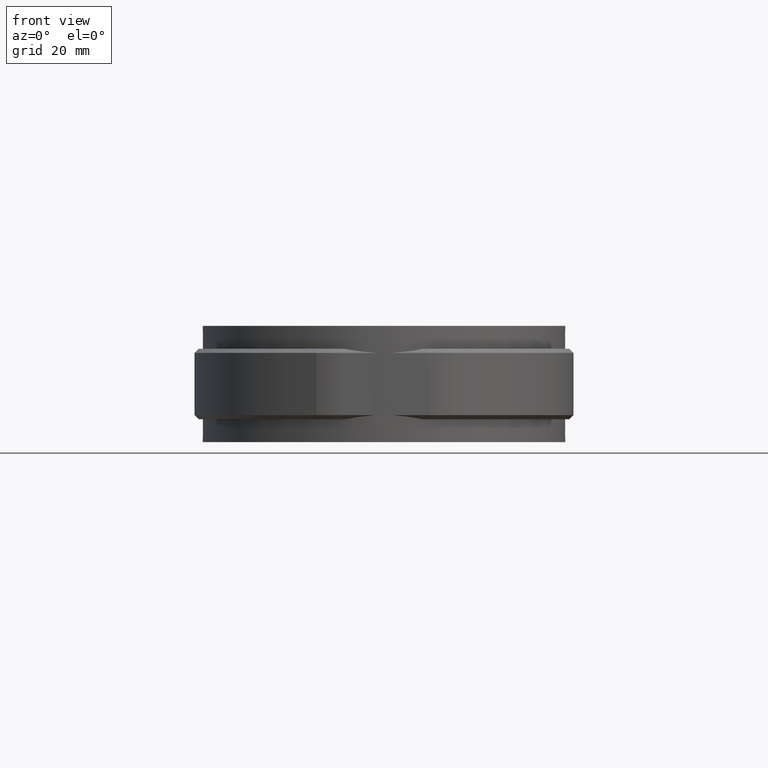
[diagram: clean part render]
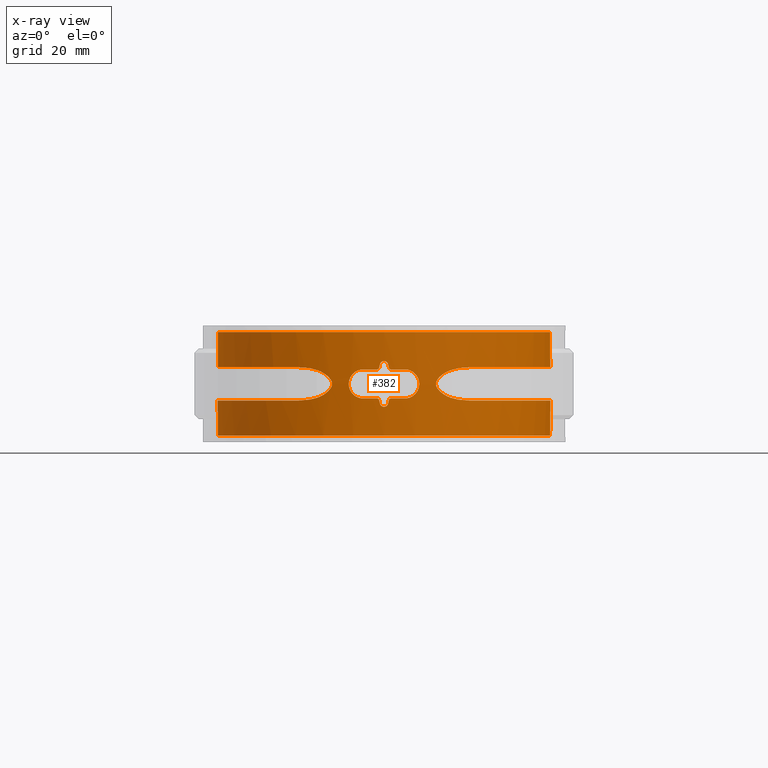
[diagram: x-ray — body ghosted, one internal face saturated and labeled with its STEP entity id]
A machine part, front view, then the same camera in x-ray: the body is ghosted and one INTERNAL B-rep face — a face not visible from any outside direction — is saturated and labeled: STEP entity #382.
In plain terms, the highlighted cylindrical surface (partial cylindrical patch) has radius 40.15 mm, axis along (0, 0, 1).
Its self-contained STEP definition (entity closure, byte-faithful):
#382 = ADVANCED_FACE( '', ( #734, #735 ), #736, .F. );
#734 = FACE_OUTER_BOUND( '', #1621, .T. );
#735 = FACE_BOUND( '', #1622, .T. );
#736 = CYLINDRICAL_SURFACE( '', #1623, 40.1500000000000 );
#1621 = EDGE_LOOP( '', ( #3108, #3109, #3110, #3111, #3112, #3113, #3114, #3115, #3116, #3117, #3118, #3119, #3120, #3121, #3122, #3123 ) );
#1622 = EDGE_LOOP( '', ( #3124, #3125, #3126, #3127, #3128, #3129, #3130, #3131, #3132, #3133, #3134, #3135, #3136, #3137, #3138, #3139 ) );
#1623 = AXIS2_PLACEMENT_3D( '', #3140, #3141, #3142 );
#3108 = ORIENTED_EDGE( '', *, *, #6207, .F. );
#3109 = ORIENTED_EDGE( '', *, *, #6197, .F. );
#3110 = ORIENTED_EDGE( '', *, *, #6216, .T. );
#3111 = ORIENTED_EDGE( '', *, *, #6203, .T. );
#3112 = ORIENTED_EDGE( '', *, *, #6217, .T. );
#3113 = ORIENTED_EDGE( '', *, *, #6218, .T. );
#3114 = ORIENTED_EDGE( '', *, *, #6219, .T. );
#3115 = ORIENTED_EDGE( '', *, *, #6220, .T. );
#3116 = ORIENTED_EDGE( '', *, *, #6221, .T. );
#3117 = ORIENTED_EDGE( '', *, *, #6201, .T. );
#3118 = ORIENTED_EDGE( '', *, *, #6141, .F. );
#3119 = ORIENTED_EDGE( '', *, *, #6199, .F. );
#3120 = ORIENTED_EDGE( '', *, *, #6208, .F. );
#3121 = ORIENTED_EDGE( '', *, *, #6186, .F. );
#3122 = ORIENTED_EDGE( '', *, *, #6222, .F. );
#3123 = ORIENTED_EDGE( '', *, *, #6184, .F. );
#3124 = ORIENTED_EDGE( '', *, *, #6223, .F. );
#3125 = ORIENTED_EDGE( '', *, *, #6224, .F. );
#3126 = ORIENTED_EDGE( '', *, *, #6213, .F. );
#3127 = ORIENTED_EDGE( '', *, *, #6225, .F. );
#3128 = ORIENTED_EDGE( '', *, *, #6226, .F. );
#3129 = ORIENTED_EDGE( '', *, *, #6227, .F. );
#3130 = ORIENTED_EDGE( '', *, *, #6195, .F. );
#3131 = ORIENTED_EDGE( '', *, *, #6190, .F. );
#3132 = ORIENTED_EDGE( '', *, *, #6193, .F. );
#3133 = ORIENTED_EDGE( '', *, *, #6205, .F. );
#3134 = ORIENTED_EDGE( '', *, *, #6228, .F. );
#3135 = ORIENTED_EDGE( '', *, *, #6229, .F. );
#3136 = ORIENTED_EDGE( '', *, *, #6230, .F. );
#3137 = ORIENTED_EDGE( '', *, *, #6231, .F. );
#3138 = ORIENTED_EDGE( '', *, *, #6232, .F. );
#3139 = ORIENTED_EDGE( '', *, *, #6233, .F. );
#3140 = CARTESIAN_POINT( '', ( 0.000000000000000, 0.000000000000000, -12.5000000000000 ) );
#3141 = DIRECTION( '', ( 0.000000000000000, 0.000000000000000, 1.00000000000000 ) );
#3142 = DIRECTION( '', ( -1.00000000000000, 6.16283340149655E-017, 0.000000000000000 ) );
#6141 = EDGE_CURVE( '', #7061, #7063, #7064, .T. );
#6184 = EDGE_CURVE( '', #7141, #7144, #7145, .T. );
#6186 = EDGE_CURVE( '', #7146, #7142, #7148, .T. );
#6190 = EDGE_CURVE( '', #7154, #7155, #7156, .T. );
#6193 = EDGE_CURVE( '', #7159, #7154, #7160, .T. );
#6195 = EDGE_CURVE( '', #7155, #7162, #7163, .F. );
#6197 = EDGE_CURVE( '', #7165, #7166, #7167, .T. );
#6199 = EDGE_CURVE( '', #7168, #7061, #7170, .T. );
#6201 = EDGE_CURVE( '', #7172, #7063, #7173, .T. );
#6203 = EDGE_CURVE( '', #7176, #7174, #7177, .T. );
#6205 = EDGE_CURVE( '', #7179, #7159, #7180, .T. );
#6207 = EDGE_CURVE( '', #7166, #7141, #7182, .T. );
#6208 = EDGE_CURVE( '', #7142, #7168, #7183, .T. );
#6213 = EDGE_CURVE( '', #7189, #7190, #7191, .F. );
#6216 = EDGE_CURVE( '', #7165, #7176, #7194, .T. );
#6217 = EDGE_CURVE( '', #7174, #7195, #7196, .T. );
#6218 = EDGE_CURVE( '', #7195, #7197, #7198, .T. );
#6219 = EDGE_CURVE( '', #7197, #7199, #7200, .T. );
#6220 = EDGE_CURVE( '', #7199, #7201, #7202, .T. );
#6221 = EDGE_CURVE( '', #7201, #7172, #7203, .T. );
#6222 = EDGE_CURVE( '', #7144, #7146, #7204, .T. );
#6223 = EDGE_CURVE( '', #7205, #7206, #7207, .T. );
#6224 = EDGE_CURVE( '', #7190, #7205, #7208, .T. );
#6225 = EDGE_CURVE( '', #7209, #7189, #7210, .T. );
#6226 = EDGE_CURVE( '', #7211, #7209, #7212, .T. );
#6227 = EDGE_CURVE( '', #7162, #7211, #7213, .T. );
#6228 = EDGE_CURVE( '', #7214, #7179, #7215, .F. );
#6229 = EDGE_CURVE( '', #7216, #7214, #7217, .T. );
#6230 = EDGE_CURVE( '', #7218, #7216, #7219, .T. );
#6231 = EDGE_CURVE( '', #7220, #7218, #7221, .T. );
#6232 = EDGE_CURVE( '', #7222, #7220, #7223, .F. );
#6233 = EDGE_CURVE( '', #7206, #7222, #7224, .T. );
#7061 = VERTEX_POINT( '', #8582 );
#7063 = VERTEX_POINT( '', #8584 );
#7064 = CIRCLE( '', #8585, 40.1500000000000 );
#7141 = VERTEX_POINT( '', #9078 );
#7142 = VERTEX_POINT( '', #9079 );
#7144 = VERTEX_POINT( '', #9094 );
#7145 = B_SPLINE_CURVE_WITH_KNOTS( '', 3, ( #9095, #9096, #9097, #9098, #9099, #9100, #9101, #9102, #9103, #9104 ), .UNSPECIFIED., .F., .F., ( 4, 2, 2, 2, 4 ), ( 0.000000000000000, 0.00176094530905233, 0.00352189061810465, 0.00528283592715698, 0.00704378123620930 ), .UNSPECIFIED. );
#7146 = VERTEX_POINT( '', #9105 );
#7148 = B_SPLINE_CURVE_WITH_KNOTS( '', 3, ( #9112, #9113, #9114, #9115, #9116, #9117, #9118, #9119, #9120, #9121 ), .UNSPECIFIED., .F., .F., ( 4, 2, 2, 2, 4 ), ( 8.91533216502733E-016, 0.00175126059550340, 0.00350252119100591, 0.00525378178650842, 0.00700504238201093 ), .UNSPECIFIED. );
#7154 = VERTEX_POINT( '', #9141 );
#7155 = VERTEX_POINT( '', #9142 );
#7156 = ELLIPSE( '', #9143, 182.905648859919, 40.1500000000000 );
#7159 = VERTEX_POINT( '', #9148 );
#7160 = B_SPLINE_CURVE_WITH_KNOTS( '', 3, ( #9149, #9150, #9151, #9152, #9153, #9154, #9155, #9156, #9157, #9158 ), .UNSPECIFIED., .F., .F., ( 4, 2, 2, 2, 4 ), ( 0.000000000000000, 0.000671575383707445, 0.00134315076741489, 0.00201472615112234, 0.00268630153482978 ), .UNSPECIFIED. );
#7162 = VERTEX_POINT( '', #9161 );
#7163 = B_SPLINE_CURVE_WITH_KNOTS( '', 3, ( #9162, #9163, #9164, #9165, #9166, #9167 ), .UNSPECIFIED., .F., .F., ( 4, 2, 4 ), ( 0.000671961400876244, 0.00100786567876079, 0.00134376995664534 ), .UNSPECIFIED. );
#7165 = VERTEX_POINT( '', #9170 );
#7166 = VERTEX_POINT( '', #9171 );
#7167 = LINE( '', #9172, #9173 );
#7168 = VERTEX_POINT( '', #9174 );
#7170 = LINE( '', #9209, #9210 );
#7172 = VERTEX_POINT( '', #9212 );
#7173 = LINE( '', #9213, #9214 );
#7174 = VERTEX_POINT( '', #9215 );
#7176 = VERTEX_POINT( '', #9250 );
#7177 = LINE( '', #9251, #9252 );
#7179 = VERTEX_POINT( '', #9254 );
#7180 = ELLIPSE( '', #9255, 182.905742164363, 40.1500000000000 );
#7182 = B_SPLINE_CURVE_WITH_KNOTS( '', 3, ( #9258, #9259, #9260, #9261, #9262, #9263, #9264, #9265, #9266, #9267, #9268, #9269, #9270, #9271, #9272, #9273, #9274, #9275, #9276, #9277, #9278, #9279, #9280, #9281, #9282, #9283, #9284, #9285, #9286, #9287, #9288, #9289, #9290, #9291, #9292, #9293, #9294, #9295, #9296, #9297, #9298, #9299, #9300, #9301, #9302, #9303, #9304, #9305, #9306, #9307, #9308, #9309, #9310, #9311 ), .UNSPECIFIED., .F., .F., ( 4, 2, 2, 2, 2, 2, 2, 2, 2, 2, 2, 2, 2, 2, 2, 2, 2, 2, 2, 2, 2, 2, 2, 2, 2, 2, 4 ), ( 3.46944695195361E-018, 0.00613111055441332, 0.00919666583161997, 0.0107294434702233, 0.0122622211088266, 0.0183933316632399, 0.0214588869404466, 0.0229916645790499, 0.0245244422176533, 0.0306555527720666, 0.0367866633264800, 0.0383194409650833, 0.0398522186036866, 0.0429177738808933, 0.0490488844353066, 0.0521144397125133, 0.0551799949897199, 0.0613111055441332, 0.0643766608213399, 0.0674422160985465, 0.0735733266529599, 0.0766388819301665, 0.0797044372073732, 0.0858355477617865, 0.0889011030389931, 0.0919666583161998, 0.0980977688706131 ), .UNSPECIFIED. );
#7183 = B_SPLINE_CURVE_WITH_KNOTS( '', 3, ( #9312, #9313, #9314, #9315, #9316, #9317, #9318, #9319, #9320, #9321, #9322, #9323, #9324, #9325, #9326, #9327, #9328, #9329, #9330, #9331, #9332, #9333, #9334, #9335, #9336, #9337, #9338, #9339, #9340, #9341, #9342, #9343, #9344, #9345, #9346, #9347, #9348, #9349, #9350, #9351, #9352, #9353, #9354, #9355, #9356, #9357, #9358, #9359, #9360, #9361, #9362, #9363, #9364, #9365 ), .UNSPECIFIED., .F., .F., ( 4, 2, 2, 2, 2, 2, 2, 2, 2, 2, 2, 2, 2, 2, 2, 2, 2, 2, 2, 2, 2, 2, 2, 2, 2, 2, 4 ), ( 6.93889390390723E-017, 0.00613106908006858, 0.00919660362010284, 0.0107293708901200, 0.0122621381601371, 0.0183932072402056, 0.0214587417802399, 0.0229915090502570, 0.0245242763202741, 0.0306553454003426, 0.0367864144804112, 0.0383191817504283, 0.0398519490204454, 0.0429174835604797, 0.0490485526405482, 0.0521140871805824, 0.0551796217206167, 0.0613106908006852, 0.0643762253407195, 0.0674417598807538, 0.0735728289608222, 0.0766383635008565, 0.0797038980408908, 0.0858349671209593, 0.0889005016609935, 0.0919660362010278, 0.0980971052810962 ), .UNSPECIFIED. );
#7189 = VERTEX_POINT( '', #9403 );
#7190 = VERTEX_POINT( '', #9404 );
#7191 = B_SPLINE_CURVE_WITH_KNOTS( '', 3, ( #9405, #9406, #9407, #9408, #9409, #9410 ), .UNSPECIFIED., .F., .F., ( 4, 2, 4 ), ( 0.00156390507531914, 0.00189980159082791, 0.00223569810633669 ), .UNSPECIFIED. );
#7194 = CIRCLE( '', #9415, 40.1500000000000 );
#7195 = VERTEX_POINT( '', #9416 );
#7196 = B_SPLINE_CURVE_WITH_KNOTS( '', 3, ( #9417, #9418, #9419, #9420, #9421, #9422, #9423, #9424, #9425, #9426, #9427, #9428, #9429, #9430, #9431, #9432, #9433, #9434, #9435, #9436, #9437, #9438, #9439, #9440, #9441, #9442, #9443, #9444, #9445, #9446, #9447, #9448, #9449, #9450, #9451, #9452, #9453, #9454, #9455, #9456, #9457, #9458, #9459, #9460, #9461, #9462, #9463, #9464, #9465, #9466, #9467, #9468, #9469, #9470 ), .UNSPECIFIED., .F., .F., ( 4, 2, 2, 2, 2, 2, 2, 2, 2, 2, 2, 2, 2, 2, 2, 2, 2, 2, 2, 2, 2, 2, 2, 2, 2, 2, 4 ), ( 5.20417042793042E-018, 0.00613105398915283, 0.00919658098372924, 0.0107293444810174, 0.0122621079783057, 0.0183931619674585, 0.0214586889620349, 0.0229914524593231, 0.0245242159566113, 0.0306552699457642, 0.0367863239349170, 0.0383190874322052, 0.0398518509294934, 0.0429173779240698, 0.0490484319132226, 0.0521139589077990, 0.0551794859023755, 0.0613105398915283, 0.0643760668861047, 0.0674415938806811, 0.0735726478698339, 0.0766381748644103, 0.0797037018589867, 0.0858347558481395, 0.0889002828427159, 0.0919658098372922, 0.0980968638264450 ), .UNSPECIFIED. );
#7197 = VERTEX_POINT( '', #9471 );
#7198 = B_SPLINE_CURVE_WITH_KNOTS( '', 3, ( #9472, #9473, #9474, #9475, #9476, #9477, #9478, #9479, #9480, #9481 ), .UNSPECIFIED., .F., .F., ( 4, 2, 2, 2, 4 ), ( 0.000000000000000, 0.00176148800998768, 0.00352297601997537, 0.00528446402996305, 0.00704595203995073 ), .UNSPECIFIED. );
#7199 = VERTEX_POINT( '', #9482 );
#7200 = B_SPLINE_CURVE_WITH_KNOTS( '', 3, ( #9483, #9484, #9485, #9486, #9487, #9488, #9489, #9490, #9491, #9492, #9493, #9494, #9495, #9496, #9497, #9498, #9499, #9500, #9501, #9502, #9503, #9504, #9505, #9506, #9507, #9508 ), .UNSPECIFIED., .F., .F., ( 4, 2, 2, 2, 2, 2, 2, 2, 2, 2, 2, 2, 4 ), ( 2.16840434497101E-018, 0.000836751154348467, 0.00167350230869693, 0.00209187788587116, 0.00251025346304539, 0.00292862904021962, 0.00334700461739385, 0.00376538019456808, 0.00418375577174232, 0.00460213134891655, 0.00502050692609078, 0.00585725808043924, 0.00669400923478770 ), .UNSPECIFIED. );
#7201 = VERTEX_POINT( '', #9509 );
#7202 = B_SPLINE_CURVE_WITH_KNOTS( '', 3, ( #9510, #9511, #9512, #9513, #9514, #9515, #9516, #9517, #9518, #9519 ), .UNSPECIFIED., .F., .F., ( 4, 2, 2, 2, 4 ), ( 8.91533216502733E-016, 0.00175126059550340, 0.00350252119100591, 0.00525378178650842, 0.00700504238201093 ), .UNSPECIFIED. );
#7203 = B_SPLINE_CURVE_WITH_KNOTS( '', 3, ( #9520, #9521, #9522, #9523, #9524, #9525, #9526, #9527, #9528, #9529, #9530, #9531, #9532, #9533, #9534, #9535, #9536, #9537, #9538, #9539, #9540, #9541, #9542, #9543, #9544, #9545, #9546, #9547, #9548, #9549, #9550, #9551, #9552, #9553, #9554, #9555, #9556, #9557, #9558, #9559, #9560, #9561, #9562, #9563, #9564, #9565, #9566, #9567, #9568, #9569, #9570, #9571, #9572, #9573 ), .UNSPECIFIED., .F., .F., ( 4, 2, 2, 2, 2, 2, 2, 2, 2, 2, 2, 2, 2, 2, 2, 2, 2, 2, 2, 2, 2, 2, 2, 2, 2, 2, 4 ), ( 6.93889390390723E-017, 0.00613106908006861, 0.00919660362010287, 0.0107293708901200, 0.0122621381601371, 0.0183932072402057, 0.0214587417802399, 0.0229915090502571, 0.0245242763202742, 0.0306553454003427, 0.0367864144804112, 0.0383191817504283, 0.0398519490204454, 0.0429174835604797, 0.0490485526405482, 0.0521140871805824, 0.0551796217206167, 0.0613106908006852, 0.0643762253407194, 0.0674417598807537, 0.0735728289608222, 0.0766383635008565, 0.0797038980408907, 0.0858349671209592, 0.0889005016609935, 0.0919660362010278, 0.0980971052810963 ), .UNSPECIFIED. );
#7204 = B_SPLINE_CURVE_WITH_KNOTS( '', 3, ( #9574, #9575, #9576, #9577, #9578, #9579, #9580, #9581, #9582, #9583, #9584, #9585, #9586, #9587, #9588, #9589, #9590, #9591, #9592, #9593, #9594, #9595, #9596, #9597, #9598, #9599 ), .UNSPECIFIED., .F., .F., ( 4, 2, 2, 2, 2, 2, 2, 2, 2, 2, 2, 2, 4 ), ( 0.000000000000000, 0.000836900859790597, 0.00167380171958119, 0.00209225214947649, 0.00251070257937179, 0.00292915300926709, 0.00334760343916238, 0.00376605386905768, 0.00418450429895298, 0.00460295472884827, 0.00502140515874357, 0.00585830601853416, 0.00669520687832476 ), .UNSPECIFIED. );
#7205 = VERTEX_POINT( '', #9600 );
#7206 = VERTEX_POINT( '', #9601 );
#7207 = B_SPLINE_CURVE_WITH_KNOTS( '', 3, ( #9602, #9603, #9604, #9605, #9606, #9607, #9608, #9609, #9610, #9611 ), .UNSPECIFIED., .F., .F., ( 4, 2, 2, 2, 4 ), ( 0.000000000000000, 0.000671575383707448, 0.00134315076741490, 0.00201472615112234, 0.00268630153482979 ), .UNSPECIFIED. );
#7208 = ELLIPSE( '', #9612, 182.905742164324, 40.1500000000000 );
#7209 = VERTEX_POINT( '', #9613 );
#7210 = CIRCLE( '', #9614, 40.1500000000000 );
#7211 = VERTEX_POINT( '', #9615 );
#7212 = B_SPLINE_CURVE_WITH_KNOTS( '', 3, ( #9616, #9617, #9618, #9619, #9620, #9621, #9622, #9623, #9624, #9625, #9626, #9627, #9628, #9629, #9630, #9631, #9632, #9633, #9634, #9635, #9636, #9637, #9638, #9639, #9640, #9641, #9642, #9643, #9644, #9645, #9646, #9647, #9648, #9649 ), .UNSPECIFIED., .F., .F., ( 4, 2, 2, 2, 2, 2, 2, 2, 2, 2, 2, 2, 2, 2, 2, 2, 4 ), ( 2.63797774002510E-018, 0.000688320657961820, 0.00137664131592364, 0.00206496197388546, 0.00275328263184727, 0.00344160328980909, 0.00412992394777091, 0.00481824460573273, 0.00550656526369455, 0.00619488592165637, 0.00688320657961819, 0.00757152723758001, 0.00825984789554183, 0.00894816855350365, 0.00963648921146547, 0.0103248098694273, 0.0110131305273891 ), .UNSPECIFIED. );
#7213 = CIRCLE( '', #9650, 40.1500000000000 );
#7214 = VERTEX_POINT( '', #9651 );
#7215 = B_SPLINE_CURVE_WITH_KNOTS( '', 3, ( #9652, #9653, #9654, #9655, #9656, #9657 ), .UNSPECIFIED., .F., .F., ( 4, 2, 4 ), ( 5.44596747808458E-011, 0.000335896975593094, 0.000671793896726513 ), .UNSPECIFIED. );
#7216 = VERTEX_POINT( '', #9658 );
#7217 = CIRCLE( '', #9659, 40.1500000000000 );
#7218 = VERTEX_POINT( '', #9660 );
#7219 = B_SPLINE_CURVE_WITH_KNOTS( '', 3, ( #9661, #9662, #9663, #9664, #9665, #9666, #9667, #9668, #9669, #9670, #9671, #9672, #9673, #9674, #9675, #9676, #9677, #9678, #9679, #9680, #9681, #9682, #9683, #9684, #9685, #9686, #9687, #9688, #9689, #9690, #9691, #9692, #9693, #9694 ), .UNSPECIFIED., .F., .F., ( 4, 2, 2, 2, 2, 2, 2, 2, 2, 2, 2, 2, 2, 2, 2, 2, 4 ), ( 3.49644694633735E-018, 0.000688320657961817, 0.00137664131592363, 0.00206496197388544, 0.00275328263184726, 0.00344160328980907, 0.00412992394777089, 0.00481824460573270, 0.00550656526369452, 0.00619488592165633, 0.00688320657961815, 0.00757152723757997, 0.00825984789554178, 0.00894816855350359, 0.00963648921146541, 0.0103248098694272, 0.0110131305273890 ), .UNSPECIFIED. );
#7220 = VERTEX_POINT( '', #9695 );
#7221 = CIRCLE( '', #9696, 40.1500000000000 );
#7222 = VERTEX_POINT( '', #9697 );
#7223 = B_SPLINE_CURVE_WITH_KNOTS( '', 3, ( #9698, #9699, #9700, #9701, #9702, #9703 ), .UNSPECIFIED., .F., .F., ( 4, 2, 4 ), ( 0.00223587922169129, 0.00257178261252996, 0.00290768600336863 ), .UNSPECIFIED. );
#7224 = ELLIPSE( '', #9704, 182.905648859906, 40.1500000000000 );
#8582 = CARTESIAN_POINT( '', ( 6.51332560834300, 39.6181661554356, 12.5000000000000 ) );
#8584 = CARTESIAN_POINT( '', ( -6.51332560834298, 39.6181661554356, 12.5000000000000 ) );
#8585 = AXIS2_PLACEMENT_3D( '', #12414, #12415, #12416 );
#9078 = CARTESIAN_POINT( '', ( 20.5369720341275, -34.5001052871205, -3.99797709321601 ) );
#9079 = CARTESIAN_POINT( '', ( 20.5375437590896, -34.4997371961190, 3.99800012268075 ) );
#9094 = CARTESIAN_POINT( '', ( 14.4276406279606, -37.4683574886183, -2.51710021923590 ) );
#9095 = CARTESIAN_POINT( '', ( 20.5369593143097, -34.5000840886278, -3.99799550519018 ) );
#9096 = CARTESIAN_POINT( '', ( 20.0316402773756, -34.8008867323432, -3.99522538159163 ) );
#9097 = CARTESIAN_POINT( '', ( 19.5211513783534, -35.0897354685347, -3.97031847212803 ) );
#9098 = CARTESIAN_POINT( '', ( 18.4902966006551, -35.6437065694372, -3.87081204865009 ) );
#9099 = CARTESIAN_POINT( '', ( 17.9696647009040, -35.9088593103122, -3.79617244131936 ) );
#9100 = CARTESIAN_POINT( '', ( 16.9309893961161, -36.4101170624226, -3.58180963963590 ) );
#9101 = CARTESIAN_POINT( '', ( 16.4083894908400, -36.6482503937421, -3.44140750062523 ) );
#9102 = CARTESIAN_POINT( '', ( 15.3908268653157, -37.0870860409308, -3.06538846046876 ) );
#9103 = CARTESIAN_POINT( '', ( 14.8952724371719, -37.2881298801423, -2.83144955455596 ) );
#9104 = CARTESIAN_POINT( '', ( 14.4274844600640, -37.4682557927990, -2.51727443867348 ) );
#9105 = CARTESIAN_POINT( '', ( 14.4264978774295, -37.4686360768057, 2.51661501902319 ) );
#9112 = CARTESIAN_POINT( '', ( 14.4264991552073, -37.4686351783033, 2.51661260202946 ) );
#9113 = CARTESIAN_POINT( '', ( 14.8944115302433, -37.2884754940489, 2.83095443206152 ) );
#9114 = CARTESIAN_POINT( '', ( 15.3900443095792, -37.0874120031491, 3.06504972746877 ) );
#9115 = CARTESIAN_POINT( '', ( 16.4077650097911, -36.6485312164841, 3.44122622406852 ) );
#9116 = CARTESIAN_POINT( '', ( 16.9305401001982, -36.4103284440532, 3.58170375932217 ) );
#9117 = CARTESIAN_POINT( '', ( 17.9694992801056, -35.9089445836345, 3.79615144802557 ) );
#9118 = CARTESIAN_POINT( '', ( 18.4902356646314, -35.6437414390870, 3.87080980387515 ) );
#9119 = CARTESIAN_POINT( '', ( 19.5214383486058, -35.0895791298738, 3.97034253474990 ) );
#9120 = CARTESIAN_POINT( '', ( 20.0320836356659, -34.8006343948224, 3.99524525392110 ) );
#9121 = CARTESIAN_POINT( '', ( 20.5375433172751, -34.4997364408925, 3.99799869656977 ) );
#9141 = CARTESIAN_POINT( '', ( 0.975609757981827, -40.1381450194217, 4.71951218674745 ) );
#9142 = CARTESIAN_POINT( '', ( 1.16219499999999, -40.1331758372294, 3.89024400000000 ) );
#9143 = AXIS2_PLACEMENT_3D( '', #12468, #12469, #12470 );
#9148 = CARTESIAN_POINT( '', ( -0.975610000000004, -40.1381450135392, 4.71951199999999 ) );
#9149 = CARTESIAN_POINT( '', ( -0.975610000000002, -40.1381450135392, 4.71951199999999 ) );
#9150 = CARTESIAN_POINT( '', ( -0.925763383884576, -40.1393566006001, 4.94105262395559 ) );
#9151 = CARTESIAN_POINT( '', ( -0.802005927435833, -40.1423807393209, 5.13901836573624 ) );
#9152 = CARTESIAN_POINT( '', ( -0.447394501656092, -40.1478988626819, 5.42271122239240 ) );
#9153 = CARTESIAN_POINT( '', ( -0.227081833796021, -40.1500000010932, 5.50000007003335 ) );
#9154 = CARTESIAN_POINT( '', ( 0.227082220366222, -40.1499999989068, 5.49999993683382 ) );
#9155 = CARTESIAN_POINT( '', ( 0.447406317463178, -40.1478987025139, 5.42270368175283 ) );
#9156 = CARTESIAN_POINT( '', ( 0.802004841014930, -40.1423807325277, 5.13901700268520 ) );
#9157 = CARTESIAN_POINT( '', ( 0.925763099080866, -40.1393566072219, 4.94105280284643 ) );
#9158 = CARTESIAN_POINT( '', ( 0.975609757981825, -40.1381450194217, 4.71951218674745 ) );
#9161 = CARTESIAN_POINT( '', ( 1.64999999892706, -40.1160815634272, 3.49999999999999 ) );
#9162 = CARTESIAN_POINT( '', ( 1.64999999892706, -40.1160815634272, 3.49999999999999 ) );
#9163 = CARTESIAN_POINT( '', ( 1.53652426492454, -40.1207488926798, 3.49999999975647 ) );
#9164 = CARTESIAN_POINT( '', ( 1.42638210925675, -40.1247530152206, 3.53860546425588 ) );
#9165 = CARTESIAN_POINT( '', ( 1.24904945931678, -40.1306646581170, 3.68042437818913 ) );
#9166 = CARTESIAN_POINT( '', ( 1.18712526641963, -40.1324538950861, 3.77944281369218 ) );
#9167 = CARTESIAN_POINT( '', ( 1.16219499999999, -40.1331758372294, 3.89024400000000 ) );
#9170 = CARTESIAN_POINT( '', ( 6.51332560834300, 39.6181661554356, -12.5000000000000 ) );
#9171 = CARTESIAN_POINT( '', ( 6.51332560834300, 39.6181661554356, -3.99474730552101 ) );
#9172 = CARTESIAN_POINT( '', ( 6.51332560834300, 39.6181661554356, -12.5000000000000 ) );
#9173 = VECTOR( '', #12475, 1000.00000000000 );
#9174 = CARTESIAN_POINT( '', ( 6.51332560834299, 39.6181661554356, 3.99474730551905 ) );
#9209 = CARTESIAN_POINT( '', ( 6.51332560834300, 39.6181661554356, -12.5000000000000 ) );
#9210 = VECTOR( '', #12476, 1000.00000000000 );
#9212 = CARTESIAN_POINT( '', ( -6.51332560834297, 39.6181661554356, 3.99474730551905 ) );
#9213 = CARTESIAN_POINT( '', ( -6.51332560834297, 39.6181661554356, -12.5000000000000 ) );
#9214 = VECTOR( '', #12480, 1000.00000000000 );
#9215 = CARTESIAN_POINT( '', ( -6.51332560834298, 39.6181661554356, -3.99474730552101 ) );
#9250 = CARTESIAN_POINT( '', ( -6.51332560834298, 39.6181661554356, -12.5000000000000 ) );
#9251 = CARTESIAN_POINT( '', ( -6.51332560834297, 39.6181661554356, -12.5000000000000 ) );
#9252 = VECTOR( '', #12481, 1000.00000000000 );
#9254 = CARTESIAN_POINT( '', ( -1.16219510888263, -40.1331758340763, 3.89024396052175 ) );
#9255 = AXIS2_PLACEMENT_3D( '', #12485, #12486, #12487 );
#9258 = CARTESIAN_POINT( '', ( 6.51332560834299, 39.6181661554356, -3.99474730552101 ) );
#9259 = CARTESIAN_POINT( '', ( 8.54611236708430, 39.2839709279214, -3.99269420004884 ) );
#9260 = CARTESIAN_POINT( '', ( 10.5336049828844, 38.7974923307148, -3.99104667626031 ) );
#9261 = CARTESIAN_POINT( '', ( 13.4484379955548, 37.8445101930458, -3.99132571285804 ) );
#9262 = CARTESIAN_POINT( '', ( 14.4089321108602, 37.4894732579268, -3.99182656781375 ) );
#9263 = CARTESIAN_POINT( '', ( 15.8327461062584, 36.9000068857420, -3.99300473323514 ) );
#9264 = CARTESIAN_POINT( '', ( 16.3053643461952, 36.6936164821324, -3.99346641350943 ) );
#9265 = CARTESIAN_POINT( '', ( 17.2388439969360, 36.2644268484874, -3.99444967882784 ) );
#9266 = CARTESIAN_POINT( '', ( 17.7000862998900, 36.0415126641079, -3.99497125632497 ) );
#9267 = CARTESIAN_POINT( '', ( 19.9792320485857, 34.8859832740658, -3.99749366797669 ) );
#9268 = CARTESIAN_POINT( '', ( 21.7164068309828, 33.8312018239578, -3.99853040780165 ) );
#9269 = CARTESIAN_POINT( '', ( 24.1952222371308, 32.0569217411991, -3.99670350481431 ) );
#9270 = CARTESIAN_POINT( '', ( 25.0002443081850, 31.4333379449047, -3.99582758583560 ) );
#9271 = CARTESIAN_POINT( '', ( 26.1753483410907, 30.4488875277807, -3.99466404985970 ) );
#9272 = CARTESIAN_POINT( '', ( 26.5616389422708, 30.1125493435527, -3.99429893731253 ) );
#9273 = CARTESIAN_POINT( '', ( 27.3232316982127, 29.4232442268563, -3.99367692834666 ) );
#9274 = CARTESIAN_POINT( '', ( 27.6989472513332, 29.0698170192340, -3.99342016356116 ) );
#9275 = CARTESIAN_POINT( '', ( 29.5341092088146, 27.2758856696536, -3.99251669382709 ) );
#9276 = CARTESIAN_POINT( '', ( 30.8762079055296, 25.7450321744326, -3.99322132476407 ) );
#9277 = CARTESIAN_POINT( '', ( 33.3164318940421, 22.4980501852430, -3.99615789759141 ) );
#9278 = CARTESIAN_POINT( '', ( 34.4145639269160, 20.7819268026991, -3.99836993962853 ) );
#9279 = CARTESIAN_POINT( '', ( 35.6289622274118, 18.5165820980060, -3.99784721569449 ) );
#9280 = CARTESIAN_POINT( '', ( 35.8637017208828, 18.0576964681014, -3.99758878020567 ) );
#9281 = CARTESIAN_POINT( '', ( 36.3132297891922, 17.1357767590461, -3.99690424846276 ) );
#9282 = CARTESIAN_POINT( '', ( 36.5285520588669, 16.6717702867061, -3.99647804455926 ) );
#9283 = CARTESIAN_POINT( '', ( 37.1465905418286, 15.2707390508089, -3.99511977154049 ) );
#9284 = CARTESIAN_POINT( '', ( 37.5214187793214, 14.3247154847419, -3.99411921736564 ) );
#9285 = CARTESIAN_POINT( '', ( 38.5359646908447, 11.4511697688071, -3.99179364039816 ) );
#9286 = CARTESIAN_POINT( '', ( 39.0663840857187, 9.48837922264691, -3.99132481544470 ) );
#9287 = CARTESIAN_POINT( '', ( 39.6381576504050, 6.47195948172236, -3.99286123190991 ) );
#9288 = CARTESIAN_POINT( '', ( 39.7915520830780, 5.45024948996754, -3.99370644484577 ) );
#9289 = CARTESIAN_POINT( '', ( 40.0177946871780, 3.41305509156640, -3.99556021264189 ) );
#9290 = CARTESIAN_POINT( '', ( 40.0913835615136, 2.39545573011086, -3.99656603734919 ) );
#9291 = CARTESIAN_POINT( '', ( 40.1961841071698, -0.654415271676659, -3.99860320061051 ) );
#9292 = CARTESIAN_POINT( '', ( 40.1120867018951, -2.68377642867517, -3.99747901429231 ) );
#9293 = CARTESIAN_POINT( '', ( 39.7532609727740, -5.72194511555182, -3.99506451625541 ) );
#9294 = CARTESIAN_POINT( '', ( 39.5946971432089, -6.73374856462632, -3.99424577605473 ) );
#9295 = CARTESIAN_POINT( '', ( 39.1973478212783, -8.75507483530381, -3.99312028970890 ) );
#9296 = CARTESIAN_POINT( '', ( 38.9611421785086, -9.75149953115615, -3.99282316408697 ) );
#9297 = CARTESIAN_POINT( '', ( 38.1432698093316, -12.6993243951385, -3.99294838474517 ) );
#9298 = CARTESIAN_POINT( '', ( 37.4529568382885, -14.6095063974186, -3.99455572883154 ) );
#9299 = CARTESIAN_POINT( '', ( 36.2014747364962, -17.3928294184574, -3.99693669724353 ) );
#9300 = CARTESIAN_POINT( '', ( 35.7481583294919, -18.3068871709210, -3.99768305993181 ) );
#9301 = CARTESIAN_POINT( '', ( 34.7675669080291, -20.1069448980936, -3.99817756129521 ) );
#9302 = CARTESIAN_POINT( '', ( 34.2388516609329, -20.9945407613397, -3.99774122747067 ) );
#9303 = CARTESIAN_POINT( '', ( 32.5679039597096, -23.5699586556029, -3.99534896203617 ) );
#9304 = CARTESIAN_POINT( '', ( 31.3340141401815, -25.1858989738395, -3.99283997341072 ) );
#9305 = CARTESIAN_POINT( '', ( 29.3072304714492, -27.4616205714038, -3.99149813028268 ) );
#9306 = CARTESIAN_POINT( '', ( 28.6021824469994, -28.1953879196749, -3.99140691923172 ) );
#9307 = CARTESIAN_POINT( '', ( 27.1322884852346, -29.6125591975162, -3.99199346247318 ) );
#9308 = CARTESIAN_POINT( '', ( 26.3656213600215, -30.2974518532762, -3.99267444636081 ) );
#9309 = CARTESIAN_POINT( '', ( 23.9854878607920, -32.2638371258946, -3.99533573750320 ) );
#9310 = CARTESIAN_POINT( '', ( 22.3071428531575, -33.4463420919503, -3.99809539136014 ) );
#9311 = CARTESIAN_POINT( '', ( 20.5369593881019, -34.5000840447013, -3.99799451127171 ) );
#9312 = CARTESIAN_POINT( '', ( 20.5375433117720, -34.4997364441677, 3.99799454443414 ) );
#9313 = CARTESIAN_POINT( '', ( 22.3076948582861, -33.4459729142994, 3.99809473845167 ) );
#9314 = CARTESIAN_POINT( '', ( 23.9800464584268, -32.2670041539166, 3.99534587569747 ) );
#9315 = CARTESIAN_POINT( '', ( 26.3451916584752, -30.3149847069482, 3.99269529202838 ) );
#9316 = CARTESIAN_POINT( '', ( 27.1095700225475, -29.6335810879553, 3.99200832822584 ) );
#9317 = CARTESIAN_POINT( '', ( 28.2195889098656, -28.5646837105568, 3.99155679100510 ) );
#9318 = CARTESIAN_POINT( '', ( 28.5841287355602, -28.1998932261066, 3.99150002048575 ) );
#9319 = CARTESIAN_POINT( '', ( 29.2962697367160, -27.4593330772703, 3.99158239147474 ) );
#9320 = CARTESIAN_POINT( '', ( 29.6441833427103, -27.0833173838804, 3.99172099089861 ) );
#9321 = CARTESIAN_POINT( '', ( 31.3435928485388, -25.1750009434068, 3.99284720050039 ) );
#9322 = CARTESIAN_POINT( '', ( 32.5753084612734, -23.5584752851789, 3.99535931647609 ) );
#9323 = CARTESIAN_POINT( '', ( 34.2345273074659, -21.0012412683571, 3.99773515952536 ) );
#9324 = CARTESIAN_POINT( '', ( 34.7560714445916, -20.1266597169667, 3.99817431107028 ) );
#9325 = CARTESIAN_POINT( '', ( 35.4902718586769, -18.7809534316882, 3.99781746424742 ) );
#9326 = CARTESIAN_POINT( '', ( 35.7269772726829, -18.3267395373026, 3.99756969951577 ) );
#9327 = CARTESIAN_POINT( '', ( 36.1840842476383, -17.4068473386406, 3.99693607575162 ) );
#9328 = CARTESIAN_POINT( '', ( 36.4047029085309, -16.9405886490717, 3.99654969356843 ) );
#9329 = CARTESIAN_POINT( '', ( 37.4575934699053, -14.6002121084095, 3.99454832631121 ) );
#9330 = CARTESIAN_POINT( '', ( 38.1476218897802, -12.6848646228265, 3.99294503638004 ) );
#9331 = CARTESIAN_POINT( '', ( 39.2328843758725, -8.77083974853555, 3.99278424951639 ) );
#9332 = CARTESIAN_POINT( '', ( 39.6281265212247, -6.77216464345523, 3.99422913860740 ) );
#9333 = CARTESIAN_POINT( '', ( 39.9309447262625, -4.21976434347196, 3.99625851319215 ) );
#9334 = CARTESIAN_POINT( '', ( 39.9818061492089, -3.70684195652216, 3.99666060353594 ) );
#9335 = CARTESIAN_POINT( '', ( 40.0634417283184, -2.68442491517155, 3.99735200944682 ) );
#9336 = CARTESIAN_POINT( '', ( 40.0943574652420, -2.17382995214815, 3.99764218035424 ) );
#9337 = CARTESIAN_POINT( '', ( 40.1578148453113, -0.643859996857298, 3.99817275071670 ) );
#9338 = CARTESIAN_POINT( '', ( 40.1611089720632, 0.373702632823030, 3.99791868015481 ) );
#9339 = CARTESIAN_POINT( '', ( 40.0556933023704, 3.41924613932441, 3.99587773976196 ) );
#9340 = CARTESIAN_POINT( '', ( 39.8323571963358, 5.44012444700177, 3.99339745146365 ) );
#9341 = CARTESIAN_POINT( '', ( 39.2625863737704, 8.45689628031818, 3.99184497886722 ) );
#9342 = CARTESIAN_POINT( '', ( 39.0321059190859, 9.46401250149161, 3.99165142809799 ) );
#9343 = CARTESIAN_POINT( '', ( 38.4984407210113, 11.4430278841707, 3.99201849419178 ) );
#9344 = CARTESIAN_POINT( '', ( 38.1951735460348, 12.4171634468374, 3.99257399291360 ) );
#9345 = CARTESIAN_POINT( '', ( 37.1784936258208, 15.2944772000737, 3.99490693559815 ) );
#9346 = CARTESIAN_POINT( '', ( 36.3588080615380, 17.1528178830860, 3.99751572711084 ) );
#9347 = CARTESIAN_POINT( '', ( 34.9148345436597, 19.8498545343635, 3.99816313574777 ) );
#9348 = CARTESIAN_POINT( '', ( 34.3975869090893, 20.7337747878670, 3.99769432641551 ) );
#9349 = CARTESIAN_POINT( '', ( 33.2892397289052, 22.4702007199273, 3.99631103834409 ) );
#9350 = CARTESIAN_POINT( '', ( 32.7053318933008, 23.3114477817765, 3.99542180148095 ) );
#9351 = CARTESIAN_POINT( '', ( 30.8670499781755, 25.7566894879491, 3.99321170358301 ) );
#9352 = CARTESIAN_POINT( '', ( 29.5266000830504, 27.2826223313934, 3.99252348074888 ) );
#9353 = CARTESIAN_POINT( '', ( 27.3447887094478, 29.4163186661947, 3.99359298418621 ) );
#9354 = CARTESIAN_POINT( '', ( 26.5888738155551, 30.1015732665356, 3.99425576114161 ) );
#9355 = CARTESIAN_POINT( '', ( 25.0184505241911, 31.4189442417903, 3.99580842210969 ) );
#9356 = CARTESIAN_POINT( '', ( 24.2020154992818, 32.0520224140078, 3.99669826886771 ) );
#9357 = CARTESIAN_POINT( '', ( 21.7056877039352, 33.8389479966704, 3.99853876600332 ) );
#9358 = CARTESIAN_POINT( '', ( 19.9667381515453, 34.8923953461508, 3.99747992517111 ) );
#9359 = CARTESIAN_POINT( '', ( 17.2486722361837, 36.2703412230961, 3.99447161796430 ) );
#9360 = CARTESIAN_POINT( '', ( 16.3242964403833, 36.6958044897362, 3.99341599215589 ) );
#9361 = CARTESIAN_POINT( '', ( 14.4382819588472, 37.4780033552921, 3.99184644851021 ) );
#9362 = CARTESIAN_POINT( '', ( 13.4744066146536, 37.8354586603821, 3.99133355598681 ) );
#9363 = CARTESIAN_POINT( '', ( 10.5404257474586, 38.7963682281774, 3.99103677422546 ) );
#9364 = CARTESIAN_POINT( '', ( 8.54609787354787, 39.2839733106951, 3.99269421468529 ) );
#9365 = CARTESIAN_POINT( '', ( 6.51332560834298, 39.6181661554356, 3.99474730551905 ) );
#9403 = CARTESIAN_POINT( '', ( 1.64999999999988, -40.1160815633830, -3.49999999999873 ) );
#9404 = CARTESIAN_POINT( '', ( 1.16219512100790, -40.1331758337252, -3.89024390662615 ) );
#9405 = CARTESIAN_POINT( '', ( 1.16219512100909, -40.1331758337252, -3.89024390662650 ) );
#9406 = CARTESIAN_POINT( '', ( 1.18682253505628, -40.1324626616461, -3.78078872869602 ) );
#9407 = CARTESIAN_POINT( '', ( 1.25012515438338, -40.1306287912356, -3.67956535408595 ) );
#9408 = CARTESIAN_POINT( '', ( 1.42529999343572, -40.1247890961470, -3.53946969534134 ) );
#9409 = CARTESIAN_POINT( '', ( 1.53790529627848, -40.1206920899831, -3.50000000000008 ) );
#9410 = CARTESIAN_POINT( '', ( 1.64999999999980, -40.1160815633830, -3.50000000000003 ) );
#9415 = AXIS2_PLACEMENT_3D( '', #12491, #12492, #12493 );
#9416 = CARTESIAN_POINT( '', ( -20.5377339781327, -34.4996138736835, -3.99800348915100 ) );
#9417 = CARTESIAN_POINT( '', ( -6.51332560834298, 39.6181661554356, -3.99474730552101 ) );
#9418 = CARTESIAN_POINT( '', ( -8.54609361271482, 39.2839740111867, -3.99269421899067 ) );
#9419 = CARTESIAN_POINT( '', ( -10.5335683050412, 38.7975012908009, -3.99104670168858 ) );
#9420 = CARTESIAN_POINT( '', ( -13.4483756582325, 37.8445320894146, -3.99132569242138 ) );
#9421 = CARTESIAN_POINT( '', ( -14.4088614264389, 37.4895001591890, -3.99182652465812 ) );
#9422 = CARTESIAN_POINT( '', ( -15.8326632242226, 36.9000423804145, -3.99300465698671 ) );
#9423 = CARTESIAN_POINT( '', ( -16.3052775134953, 36.6936550038322, -3.99346632655185 ) );
#9424 = CARTESIAN_POINT( '', ( -17.2387499727184, 36.2644714798169, -3.99444957528367 ) );
#9425 = CARTESIAN_POINT( '', ( -17.6999887750172, 36.0415604941721, -3.99497114662714 ) );
#9426 = CARTESIAN_POINT( '', ( -19.9791174933268, 34.8860478134259, -3.99749354824766 ) );
#9427 = CARTESIAN_POINT( '', ( -21.7162801484961, 33.8312819962835, -3.99853043581720 ) );
#9428 = CARTESIAN_POINT( '', ( -24.1950797534521, 32.0570289792127, -3.99670364249676 ) );
#9429 = CARTESIAN_POINT( '', ( -25.0000969588219, 31.4334548122189, -3.99582774027897 ) );
#9430 = CARTESIAN_POINT( '', ( -26.1751943451309, 30.4490198256069, -3.99466419806863 ) );
#9431 = CARTESIAN_POINT( '', ( -26.5614828396772, 30.1126869496778, -3.99429907830692 ) );
#9432 = CARTESIAN_POINT( '', ( -27.3230716117532, 29.4233927967318, -3.99367704559618 ) );
#9433 = CARTESIAN_POINT( '', ( -27.6987857591612, 29.0699708189309, -3.99342026385535 ) );
#9434 = CARTESIAN_POINT( '', ( -29.5339424823613, 27.2760649026766, -3.99251669277177 ) );
#9435 = CARTESIAN_POINT( '', ( -30.8760389897256, 25.7452332714492, -3.99322118408455 ) );
#9436 = CARTESIAN_POINT( '', ( -33.3162631078634, 22.4982984339708, -3.99615763188803 ) );
#9437 = CARTESIAN_POINT( '', ( -34.4143974500268, 20.7822003318060, -3.99836973213409 ) );
#9438 = CARTESIAN_POINT( '', ( -35.6288021737764, 18.5168899134516, -3.99784735434694 ) );
#9439 = CARTESIAN_POINT( '', ( -35.8635439114289, 18.0580097679999, -3.99758897467830 ) );
#9440 = CARTESIAN_POINT( '', ( -36.3130765466939, 17.1361013763959, -3.99690452762170 ) );
#9441 = CARTESIAN_POINT( '', ( -36.5284012383643, 16.6721006074826, -3.99647835297517 ) );
#9442 = CARTESIAN_POINT( '', ( -37.1464474230870, 15.2710866224919, -3.99512013213940 ) );
#9443 = CARTESIAN_POINT( '', ( -37.5212813749603, 14.3250747441574, -3.99411956494075 ) );
#9444 = CARTESIAN_POINT( '', ( -38.5358463681721, 11.4515647169804, -3.99179384641614 ) );
#9445 = CARTESIAN_POINT( '', ( -39.0662810388924, 9.48879878772524, -3.99132478252769 ) );
#9446 = CARTESIAN_POINT( '', ( -39.6380825665664, 6.47241760140517, -3.99286090820177 ) );
#9447 = CARTESIAN_POINT( '', ( -39.7914874782038, 5.45071967937217, -3.99370603813492 ) );
#9448 = CARTESIAN_POINT( '', ( -40.0177528338687, 3.41354344904757, -3.99555974712226 ) );
#9449 = CARTESIAN_POINT( '', ( -40.0913536184655, 2.39595315814025, -3.99656559266610 ) );
#9450 = CARTESIAN_POINT( '', ( -40.1961917719432, -0.653890679377451, -3.99860307497621 ) );
#9451 = CARTESIAN_POINT( '', ( -40.1121219128267, -2.68323378931153, -3.99747942500675 ) );
#9452 = CARTESIAN_POINT( '', ( -39.7533426764759, -5.72137553618671, -3.99506497917449 ) );
#9453 = CARTESIAN_POINT( '', ( -39.5947962166131, -6.73316492932305, -3.99424619478192 ) );
#9454 = CARTESIAN_POINT( '', ( -39.1974796924408, -8.75448360334703, -3.99312052520921 ) );
#9455 = CARTESIAN_POINT( '', ( -38.9612908556918, -9.75090465534493, -3.99282327037210 ) );
#9456 = CARTESIAN_POINT( '', ( -38.1434704537946, -12.6987191755024, -3.99294809604643 ) );
#9457 = CARTESIAN_POINT( '', ( -37.4531941706559, -14.6088950569888, -3.99455516134935 ) );
#9458 = CARTESIAN_POINT( '', ( -36.2017717218972, -17.3922106498393, -3.99693619017072 ) );
#9459 = CARTESIAN_POINT( '', ( -35.7484759738223, -18.3062662200718, -3.99768265390390 ) );
#9460 = CARTESIAN_POINT( '', ( -34.7679277677273, -20.1063203025613, -3.99817762499101 ) );
#9461 = CARTESIAN_POINT( '', ( -34.2392328668979, -20.9939187148963, -3.99774165322114 ) );
#9462 = CARTESIAN_POINT( '', ( -32.5683439851457, -23.5693494044823, -3.99534983191341 ) );
#9463 = CARTESIAN_POINT( '', ( -31.3344947607491, -25.1852994168075, -3.99284066301316 ) );
#9464 = CARTESIAN_POINT( '', ( -29.3077755096907, -27.4610385242436, -3.99149830553364 ) );
#9465 = CARTESIAN_POINT( '', ( -28.6027495476706, -28.1948122059298, -3.99140688358679 ) );
#9466 = CARTESIAN_POINT( '', ( -27.1329011921070, -29.6119973982468, -3.99199302748326 ) );
#9467 = CARTESIAN_POINT( '', ( -26.3662601356609, -30.2968956974541, -3.99267381940032 ) );
#9468 = CARTESIAN_POINT( '', ( -23.9861865296220, -32.2633167163763, -3.99533478186809 ) );
#9469 = CARTESIAN_POINT( '', ( -22.3078813162271, -33.4458483892112, -3.99809452092297 ) );
#9470 = CARTESIAN_POINT( '', ( -20.5377379637534, -34.4996205679453, -3.99799455544093 ) );
#9471 = CARTESIAN_POINT( '', ( -14.4264978774208, -37.4686360766442, -2.51661501930479 ) );
#9472 = CARTESIAN_POINT( '', ( -20.5377379783647, -34.4996205592472, -3.99799975584898 ) );
#9473 = CARTESIAN_POINT( '', ( -20.0322699823888, -34.8005273254528, -3.99525208524997 ) );
#9474 = CARTESIAN_POINT( '', ( -19.5216278476321, -35.0894734251996, -3.97035419765666 ) );
#9475 = CARTESIAN_POINT( '', ( -18.4904579321816, -35.6436258612596, -3.87083788245450 ) );
#9476 = CARTESIAN_POINT( '', ( -17.9696668897612, -35.9088610270789, -3.79617959153351 ) );
#9477 = CARTESIAN_POINT( '', ( -16.9306740412236, -36.4102664766530, -3.58173785589692 ) );
#9478 = CARTESIAN_POINT( '', ( -16.4079106924655, -36.6484670585601, -3.44127433537870 ) );
#9479 = CARTESIAN_POINT( '', ( -15.3900615698875, -37.0874058935019, -3.06506184328156 ) );
#9480 = CARTESIAN_POINT( '', ( -14.8943976734114, -37.2884808293246, -2.83094512308192 ) );
#9481 = CARTESIAN_POINT( '', ( -14.4264991553583, -37.4686351782454, -2.51661260213260 ) );
#9482 = CARTESIAN_POINT( '', ( -14.4264978774295, -37.4686360768057, 2.51661501902319 ) );
#9483 = CARTESIAN_POINT( '', ( -14.4264980295567, -37.4686356117112, -2.51661452288435 ) );
#9484 = CARTESIAN_POINT( '', ( -14.2041864447570, -37.5542319401524, -2.36831657594894 ) );
#9485 = CARTESIAN_POINT( '', ( -13.9878929993590, -37.6352241286058, -2.21080897360291 ) );
#9486 = CARTESIAN_POINT( '', ( -13.5731481451482, -37.7867820170198, -1.86990141191479 ) );
#9487 = CARTESIAN_POINT( '', ( -13.3743693795812, -37.8574483023115, -1.68683815242466 ) );
#9488 = CARTESIAN_POINT( '', ( -13.0994785717590, -37.9530706691032, -1.38017266604428 ) );
#9489 = CARTESIAN_POINT( '', ( -13.0129380637348, -37.9827990662315, -1.27371016236464 ) );
#9490 = CARTESIAN_POINT( '', ( -12.8536006083600, -38.0370153055820, -1.04947202986843 ) );
#9491 = CARTESIAN_POINT( '', ( -12.7802218624911, -38.0616961408852, -0.930628085740343 ) );
#9492 = CARTESIAN_POINT( '', ( -12.6560587526625, -38.1031620843301, -0.682553447734086 ) );
#9493 = CARTESIAN_POINT( '', ( -12.6054644909510, -38.1198919881357, -0.554111088199215 ) );
#9494 = CARTESIAN_POINT( '', ( -12.5343877256676, -38.1433221489999, -0.285732282562620 ) );
#9495 = CARTESIAN_POINT( '', ( -12.5142836262840, -38.1499043958552, -0.143389111560172 ) );
#9496 = CARTESIAN_POINT( '', ( -12.5137072957428, -38.1500934442951, 0.136982975477128 ) );
#9497 = CARTESIAN_POINT( '', ( -12.5328884539509, -38.1438147440711, 0.278157649501413 ) );
#9498 = CARTESIAN_POINT( '', ( -12.6038648150413, -38.1204208784919, 0.549903201875538 ) );
#9499 = CARTESIAN_POINT( '', ( -12.6546245746608, -38.1036384514036, 0.679260320591567 ) );
#9500 = CARTESIAN_POINT( '', ( -12.7788237890207, -38.0621655838190, 0.928252822435210 ) );
#9501 = CARTESIAN_POINT( '', ( -12.8522164757006, -38.0374823307780, 1.04730482712514 ) );
#9502 = CARTESIAN_POINT( '', ( -13.0109752934037, -37.9834707776548, 1.27116264505763 ) );
#9503 = CARTESIAN_POINT( '', ( -13.0969624556137, -37.9539367815960, 1.37711814901105 ) );
#9504 = CARTESIAN_POINT( '', ( -13.3693783695411, -37.8592022255173, 1.68175195545141 ) );
#9505 = CARTESIAN_POINT( '', ( -13.5704157140225, -37.7877688062862, 1.86753028157091 ) );
#9506 = CARTESIAN_POINT( '', ( -13.9869011673897, -37.6355981717097, 2.21011776000621 ) );
#9507 = CARTESIAN_POINT( '', ( -14.2038122598268, -37.5543760120440, 2.36806696749863 ) );
#9508 = CARTESIAN_POINT( '', ( -14.4264980293691, -37.4686356117594, 2.51661452278076 ) );
#9509 = CARTESIAN_POINT( '', ( -20.5375437590896, -34.4997371961190, 3.99800012268075 ) );
#9510 = CARTESIAN_POINT( '', ( -14.4264991552073, -37.4686351783033, 2.51661260202946 ) );
#9511 = CARTESIAN_POINT( '', ( -14.8944115302433, -37.2884754940489, 2.83095443206152 ) );
#9512 = CARTESIAN_POINT( '', ( -15.3900443095792, -37.0874120031491, 3.06504972746877 ) );
#9513 = CARTESIAN_POINT( '', ( -16.4077650097911, -36.6485312164841, 3.44122622406852 ) );
#9514 = CARTESIAN_POINT( '', ( -16.9305401001982, -36.4103284440532, 3.58170375932217 ) );
#9515 = CARTESIAN_POINT( '', ( -17.9694992801056, -35.9089445836345, 3.79615144802557 ) );
#9516 = CARTESIAN_POINT( '', ( -18.4902356646314, -35.6437414390870, 3.87080980387515 ) );
#9517 = CARTESIAN_POINT( '', ( -19.5214383486058, -35.0895791298738, 3.97034253474990 ) );
#9518 = CARTESIAN_POINT( '', ( -20.0320836356659, -34.8006343948224, 3.99524525392110 ) );
#9519 = CARTESIAN_POINT( '', ( -20.5375433172751, -34.4997364408925, 3.99799869656977 ) );
#9520 = CARTESIAN_POINT( '', ( -20.5375433117720, -34.4997364441677, 3.99799454443414 ) );
#9521 = CARTESIAN_POINT( '', ( -22.3076948582861, -33.4459729142994, 3.99809473845167 ) );
#9522 = CARTESIAN_POINT( '', ( -23.9800464584268, -32.2670041539166, 3.99534587569747 ) );
#9523 = CARTESIAN_POINT( '', ( -26.3451916584752, -30.3149847069482, 3.99269529202838 ) );
#9524 = CARTESIAN_POINT( '', ( -27.1095700225475, -29.6335810879553, 3.99200832822584 ) );
#9525 = CARTESIAN_POINT( '', ( -28.2195889098656, -28.5646837105568, 3.99155679100510 ) );
#9526 = CARTESIAN_POINT( '', ( -28.5841287355602, -28.1998932261066, 3.99150002048575 ) );
#9527 = CARTESIAN_POINT( '', ( -29.2962697367160, -27.4593330772703, 3.99158239147474 ) );
#9528 = CARTESIAN_POINT( '', ( -29.6441833427103, -27.0833173838804, 3.99172099089861 ) );
#9529 = CARTESIAN_POINT( '', ( -31.3435928485388, -25.1750009434068, 3.99284720050039 ) );
#9530 = CARTESIAN_POINT( '', ( -32.5753084612733, -23.5584752851788, 3.99535931647610 ) );
#9531 = CARTESIAN_POINT( '', ( -34.2345273074659, -21.0012412683571, 3.99773515952537 ) );
#9532 = CARTESIAN_POINT( '', ( -34.7560714445916, -20.1266597169667, 3.99817431107028 ) );
#9533 = CARTESIAN_POINT( '', ( -35.4902718586769, -18.7809534316882, 3.99781746424742 ) );
#9534 = CARTESIAN_POINT( '', ( -35.7269772726829, -18.3267395373026, 3.99756969951577 ) );
#9535 = CARTESIAN_POINT( '', ( -36.1840842476383, -17.4068473386406, 3.99693607575162 ) );
#9536 = CARTESIAN_POINT( '', ( -36.4047029085309, -16.9405886490717, 3.99654969356844 ) );
#9537 = CARTESIAN_POINT( '', ( -37.4575934699053, -14.6002121084095, 3.99454832631121 ) );
#9538 = CARTESIAN_POINT( '', ( -38.1476218897802, -12.6848646228265, 3.99294503638003 ) );
#9539 = CARTESIAN_POINT( '', ( -39.2328843758725, -8.77083974853554, 3.99278424951638 ) );
#9540 = CARTESIAN_POINT( '', ( -39.6281265212247, -6.77216464345523, 3.99422913860740 ) );
#9541 = CARTESIAN_POINT( '', ( -39.9309447262625, -4.21976434347196, 3.99625851319215 ) );
#9542 = CARTESIAN_POINT( '', ( -39.9818061492090, -3.70684195652214, 3.99666060353593 ) );
#9543 = CARTESIAN_POINT( '', ( -40.0634417283184, -2.68442491517153, 3.99735200944680 ) );
#9544 = CARTESIAN_POINT( '', ( -40.0943574652420, -2.17382995214814, 3.99764218035424 ) );
#9545 = CARTESIAN_POINT( '', ( -40.1578148453113, -0.643859996857279, 3.99817275071670 ) );
#9546 = CARTESIAN_POINT( '', ( -40.1611089720632, 0.373702632823047, 3.99791868015481 ) );
#9547 = CARTESIAN_POINT( '', ( -40.0556933023704, 3.41924613932443, 3.99587773976195 ) );
#9548 = CARTESIAN_POINT( '', ( -39.8323571963358, 5.44012444700178, 3.99339745146365 ) );
#9549 = CARTESIAN_POINT( '', ( -39.2625863737704, 8.45689628031820, 3.99184497886722 ) );
#9550 = CARTESIAN_POINT( '', ( -39.0321059190859, 9.46401250149161, 3.99165142809799 ) );
#9551 = CARTESIAN_POINT( '', ( -38.4984407210113, 11.4430278841707, 3.99201849419178 ) );
#9552 = CARTESIAN_POINT( '', ( -38.1951735460348, 12.4171634468374, 3.99257399291359 ) );
#9553 = CARTESIAN_POINT( '', ( -37.1784936258207, 15.2944772000737, 3.99490693559815 ) );
#9554 = CARTESIAN_POINT( '', ( -36.3588080615380, 17.1528178830860, 3.99751572711087 ) );
#9555 = CARTESIAN_POINT( '', ( -34.9148345436596, 19.8498545343635, 3.99816313574779 ) );
#9556 = CARTESIAN_POINT( '', ( -34.3975869090893, 20.7337747878671, 3.99769432641551 ) );
#9557 = CARTESIAN_POINT( '', ( -33.2892397289052, 22.4702007199273, 3.99631103834409 ) );
#9558 = CARTESIAN_POINT( '', ( -32.7053318933008, 23.3114477817766, 3.99542180148095 ) );
#9559 = CARTESIAN_POINT( '', ( -30.8670499781755, 25.7566894879491, 3.99321170358300 ) );
#9560 = CARTESIAN_POINT( '', ( -29.5266000830504, 27.2826223313934, 3.99252348074888 ) );
#9561 = CARTESIAN_POINT( '', ( -27.3447887094478, 29.4163186661947, 3.99359298418621 ) );
#9562 = CARTESIAN_POINT( '', ( -26.5888738155551, 30.1015732665357, 3.99425576114161 ) );
#9563 = CARTESIAN_POINT( '', ( -25.0184505241911, 31.4189442417903, 3.99580842210968 ) );
#9564 = CARTESIAN_POINT( '', ( -24.2020154992817, 32.0520224140078, 3.99669826886772 ) );
#9565 = CARTESIAN_POINT( '', ( -21.7056877039352, 33.8389479966704, 3.99853876600332 ) );
#9566 = CARTESIAN_POINT( '', ( -19.9667381515453, 34.8923953461508, 3.99747992517110 ) );
#9567 = CARTESIAN_POINT( '', ( -17.2486722361836, 36.2703412230961, 3.99447161796429 ) );
#9568 = CARTESIAN_POINT( '', ( -16.3242964403833, 36.6958044897363, 3.99341599215588 ) );
#9569 = CARTESIAN_POINT( '', ( -14.4382819588472, 37.4780033552921, 3.99184644851020 ) );
#9570 = CARTESIAN_POINT( '', ( -13.4744066146536, 37.8354586603821, 3.99133355598681 ) );
#9571 = CARTESIAN_POINT( '', ( -10.5404257474586, 38.7963682281774, 3.99103677422547 ) );
#9572 = CARTESIAN_POINT( '', ( -8.54609787354784, 39.2839733106951, 3.99269421468529 ) );
#9573 = CARTESIAN_POINT( '', ( -6.51332560834295, 39.6181661554356, 3.99474730551905 ) );
#9574 = CARTESIAN_POINT( '', ( 14.4274858075702, -37.4682552739297, -2.51727335328454 ) );
#9575 = CARTESIAN_POINT( '', ( 14.2051179372039, -37.5538800053274, -2.36897799805659 ) );
#9576 = CARTESIAN_POINT( '', ( 13.9887667441286, -37.6348997621668, -2.21147295604727 ) );
#9577 = CARTESIAN_POINT( '', ( 13.5739002829529, -37.7865122264338, -1.87057364306233 ) );
#9578 = CARTESIAN_POINT( '', ( 13.3750691183227, -37.8572015413683, -1.68752829040744 ) );
#9579 = CARTESIAN_POINT( '', ( 13.1000550401968, -37.9528718091232, -1.38086078216645 ) );
#9580 = CARTESIAN_POINT( '', ( 13.0134722874081, -37.9826161410480, -1.27439823362741 ) );
#9581 = CARTESIAN_POINT( '', ( 12.8540462684425, -38.0368648080001, -1.05016257384145 ) );
#9582 = CARTESIAN_POINT( '', ( 12.7806220245685, -38.0615618726525, -0.931324691019000 ) );
#9583 = CARTESIAN_POINT( '', ( 12.6563499997998, -38.1030654436517, -0.683237688738866 ) );
#9584 = CARTESIAN_POINT( '', ( 12.6056988882766, -38.1198145373272, -0.554787066993151 ) );
#9585 = CARTESIAN_POINT( '', ( 12.5345055165396, -38.1432835015282, -0.286385098849309 ) );
#9586 = CARTESIAN_POINT( '', ( 12.5143400680469, -38.1498858817658, -0.144026325936846 ) );
#9587 = CARTESIAN_POINT( '', ( 12.5136536077247, -38.1501110550987, 0.136397264162882 ) );
#9588 = CARTESIAN_POINT( '', ( 12.5327880387007, -38.1438477022233, 0.277606813353143 ) );
#9589 = CARTESIAN_POINT( '', ( 12.6036964385926, -38.1204765137743, 0.549424292354484 ) );
#9590 = CARTESIAN_POINT( '', ( 12.6544345821563, -38.1037015290965, 0.678818930945824 ) );
#9591 = CARTESIAN_POINT( '', ( 12.7786115814110, -38.0622368084690, 0.927887692461305 ) );
#9592 = CARTESIAN_POINT( '', ( 12.8519994330631, -38.0375556673363, 1.04697065272195 ) );
#9593 = CARTESIAN_POINT( '', ( 13.0107604843196, -37.9835443605890, 1.27088781067184 ) );
#9594 = CARTESIAN_POINT( '', ( 13.0967548093428, -37.9540084651789, 1.37687160712051 ) );
#9595 = CARTESIAN_POINT( '', ( 13.3692054851442, -37.8592633993275, 1.68158725382350 ) );
#9596 = CARTESIAN_POINT( '', ( 13.5702747831027, -37.7878196150854, 1.86740704776555 ) );
#9597 = CARTESIAN_POINT( '', ( 13.9868239759174, -37.6356270575880, 2.21006156955283 ) );
#9598 = CARTESIAN_POINT( '', ( 14.2037720602432, -37.5543914900595, 2.36804015142303 ) );
#9599 = CARTESIAN_POINT( '', ( 14.4264980294061, -37.4686356117692, 2.51661452278190 ) );
#9600 = CARTESIAN_POINT( '', ( 0.975609999999997, -40.1381450135392, -4.71951200000000 ) );
#9601 = CARTESIAN_POINT( '', ( -0.975609757981835, -40.1381450194217, -4.71951218674743 ) );
#9602 = CARTESIAN_POINT( '', ( 0.975609999999995, -40.1381450135392, -4.71951200000000 ) );
#9603 = CARTESIAN_POINT( '', ( 0.925763383884567, -40.1393566006001, -4.94105262395559 ) );
#9604 = CARTESIAN_POINT( '', ( 0.802005927435821, -40.1423807393209, -5.13901836573625 ) );
#9605 = CARTESIAN_POINT( '', ( 0.447394501656075, -40.1478988626819, -5.42271122239241 ) );
#9606 = CARTESIAN_POINT( '', ( 0.227081833796001, -40.1500000010932, -5.50000007003335 ) );
#9607 = CARTESIAN_POINT( '', ( -0.227082220366243, -40.1499999989068, -5.49999993683381 ) );
#9608 = CARTESIAN_POINT( '', ( -0.447406317463200, -40.1478987025139, -5.42270368175282 ) );
#9609 = CARTESIAN_POINT( '', ( -0.802004841014947, -40.1423807325277, -5.13901700268518 ) );
#9610 = CARTESIAN_POINT( '', ( -0.925763099080879, -40.1393566072219, -4.94105280284641 ) );
#9611 = CARTESIAN_POINT( '', ( -0.975609757981834, -40.1381450194217, -4.71951218674743 ) );
#9612 = AXIS2_PLACEMENT_3D( '', #12494, #12495, #12496 );
#9613 = CARTESIAN_POINT( '', ( 5.00000000000004, -39.8374509726714, -3.50000000000000 ) );
#9614 = AXIS2_PLACEMENT_3D( '', #12497, #12498, #12499 );
#9615 = CARTESIAN_POINT( '', ( 5.00000000000004, -39.8374509726714, 3.50000000000000 ) );
#9616 = CARTESIAN_POINT( '', ( 5.00000000000004, -39.8374509726714, 3.50000000000000 ) );
#9617 = CARTESIAN_POINT( '', ( 5.23095312068352, -39.8084640376336, 3.50000000000000 ) );
#9618 = CARTESIAN_POINT( '', ( 5.45780212002911, -39.7779539230157, 3.47736659973729 ) );
#9619 = CARTESIAN_POINT( '', ( 5.90370290557688, -39.7142230729198, 3.38895003039637 ) );
#9620 = CARTESIAN_POINT( '', ( 6.12497297081262, -39.6806372925288, 3.32215002128914 ) );
#9621 = CARTESIAN_POINT( '', ( 6.54748888897171, -39.6131122115292, 3.14762181456406 ) );
#9622 = CARTESIAN_POINT( '', ( 6.74783993869562, -39.5793661135203, 3.04087193485672 ) );
#9623 = CARTESIAN_POINT( '', ( 7.12709790786461, -39.5128338796149, 2.78878128684499 ) );
#9624 = CARTESIAN_POINT( '', ( 7.30703070288958, -39.4798282103110, 2.64188211090487 ) );
#9625 = CARTESIAN_POINT( '', ( 7.63012695924151, -39.4186592338513, 2.32042322223025 ) );
#9626 = CARTESIAN_POINT( '', ( 7.77524929893769, -39.3901653825753, 2.14494918012443 ) );
#9627 = CARTESIAN_POINT( '', ( 8.03189468222589, -39.3386362033676, 1.76364120287006 ) );
#9628 = CARTESIAN_POINT( '', ( 8.14185037334382, -39.3159111610095, 1.55918610467899 ) );
#9629 = CARTESIAN_POINT( '', ( 8.31800570359753, -39.2790195783605, 1.13715576259324 ) );
#9630 = CARTESIAN_POINT( '', ( 8.38573993211777, -39.2645393887124, 0.916892711974009 ) );
#9631 = CARTESIAN_POINT( '', ( 8.47719798090898, -39.2448952350409, 0.461542343420827 ) );
#9632 = CARTESIAN_POINT( '', ( 8.49978743216570, -39.2399810608345, 0.232864924486162 ) );
#9633 = CARTESIAN_POINT( '', ( 8.50020961066951, -39.2398896102083, -0.226430618021872 ) );
#9634 = CARTESIAN_POINT( '', ( 8.47732475889326, -39.2448671285612, -0.459671539376873 ) );
#9635 = CARTESIAN_POINT( '', ( 8.38705818971125, -39.2642571039942, -0.911549352714991 ) );
#9636 = CARTESIAN_POINT( '', ( 8.32029841925205, -39.2785345279022, -1.13073656094916 ) );
#9637 = CARTESIAN_POINT( '', ( 8.14368313493766, -39.3155321144551, -1.55570019935184 ) );
#9638 = CARTESIAN_POINT( '', ( 8.03339770553653, -39.3383255505246, -1.76085523532296 ) );
#9639 = CARTESIAN_POINT( '', ( 7.77897295022429, -39.3894264448476, -2.13995844390499 ) );
#9640 = CARTESIAN_POINT( '', ( 7.63383561647538, -39.4179489293803, -2.31648332400235 ) );
#9641 = CARTESIAN_POINT( '', ( 7.30711257340121, -39.4798207931374, -2.64204780779025 ) );
#9642 = CARTESIAN_POINT( '', ( 7.13064342963379, -39.5121914570015, -2.78603614722664 ) );
#9643 = CARTESIAN_POINT( '', ( 6.75250071702762, -39.5785684875270, -3.03815405710651 ) );
#9644 = CARTESIAN_POINT( '', ( 6.54845876485954, -39.6129508083986, -3.14713162277504 ) );
#9645 = CARTESIAN_POINT( '', ( 6.12634146488510, -39.6804249498327, -3.32167381029828 ) );
#9646 = CARTESIAN_POINT( '', ( 5.90902447251930, -39.7134352970844, -3.38757415608823 ) );
#9647 = CARTESIAN_POINT( '', ( 5.46185383216957, -39.7774014489202, -3.47687721847438 ) );
#9648 = CARTESIAN_POINT( '', ( 5.23095163851192, -39.8084642236610, -3.50000000000002 ) );
#9649 = CARTESIAN_POINT( '', ( 5.00000000000004, -39.8374509726714, -3.50000000000002 ) );
#9650 = AXIS2_PLACEMENT_3D( '', #12500, #12501, #12502 );
#9651 = CARTESIAN_POINT( '', ( -1.65000000000002, -40.1160815633830, 3.50000000000000 ) );
#9652 = CARTESIAN_POINT( '', ( -1.16219509675616, -40.1331758344275, 3.89024401441720 ) );
#9653 = CARTESIAN_POINT( '', ( -1.18712634043626, -40.1324538639241, 3.77943836817803 ) );
#9654 = CARTESIAN_POINT( '', ( -1.24904919201201, -40.1306646610776, 3.68042565870899 ) );
#9655 = CARTESIAN_POINT( '', ( -1.42637699645632, -40.1247531916136, 3.53860855846264 ) );
#9656 = CARTESIAN_POINT( '', ( -1.53652898703228, -40.1207486984595, 3.50000000000001 ) );
#9657 = CARTESIAN_POINT( '', ( -1.65000000000002, -40.1160815633830, 3.50000000000001 ) );
#9658 = CARTESIAN_POINT( '', ( -4.99999999999995, -39.8374509726714, 3.50000000000000 ) );
#9659 = AXIS2_PLACEMENT_3D( '', #12503, #12504, #12505 );
#9660 = CARTESIAN_POINT( '', ( -4.99999999999995, -39.8374509726714, -3.49999999999999 ) );
#9661 = CARTESIAN_POINT( '', ( -4.99999999999995, -39.8374509726714, -3.49999999999999 ) );
#9662 = CARTESIAN_POINT( '', ( -5.23095312068343, -39.8084640376336, -3.49999999999999 ) );
#9663 = CARTESIAN_POINT( '', ( -5.45780212002902, -39.7779539230157, -3.47736659973727 ) );
#9664 = CARTESIAN_POINT( '', ( -5.90370290557679, -39.7142230729198, -3.38895003039635 ) );
#9665 = CARTESIAN_POINT( '', ( -6.12497297081253, -39.6806372925289, -3.32215002128913 ) );
#9666 = CARTESIAN_POINT( '', ( -6.54748888897162, -39.6131122115293, -3.14762181456405 ) );
#9667 = CARTESIAN_POINT( '', ( -6.74783993869552, -39.5793661135203, -3.04087193485671 ) );
#9668 = CARTESIAN_POINT( '', ( -7.12709790786451, -39.5128338796149, -2.78878128684498 ) );
#9669 = CARTESIAN_POINT( '', ( -7.30703070288947, -39.4798282103110, -2.64188211090486 ) );
#9670 = CARTESIAN_POINT( '', ( -7.63012695924140, -39.4186592338514, -2.32042322223024 ) );
#9671 = CARTESIAN_POINT( '', ( -7.77524929893758, -39.3901653825754, -2.14494918012442 ) );
#9672 = CARTESIAN_POINT( '', ( -8.03189468222579, -39.3386362033676, -1.76364120287005 ) );
#9673 = CARTESIAN_POINT( '', ( -8.14185037334371, -39.3159111610095, -1.55918610467899 ) );
#9674 = CARTESIAN_POINT( '', ( -8.31800570359743, -39.2790195783606, -1.13715576259324 ) );
#9675 = CARTESIAN_POINT( '', ( -8.38573993211766, -39.2645393887125, -0.916892711974009 ) );
#9676 = CARTESIAN_POINT( '', ( -8.47719798090887, -39.2448952350410, -0.461542343420829 ) );
#9677 = CARTESIAN_POINT( '', ( -8.49978743216559, -39.2399810608345, -0.232864924486166 ) );
#9678 = CARTESIAN_POINT( '', ( -8.50020961066940, -39.2398896102083, 0.226430618021865 ) );
#9679 = CARTESIAN_POINT( '', ( -8.47732475889315, -39.2448671285612, 0.459671539376864 ) );
#9680 = CARTESIAN_POINT( '', ( -8.38705818971114, -39.2642571039943, 0.911549352714979 ) );
#9681 = CARTESIAN_POINT( '', ( -8.32029841925195, -39.2785345279022, 1.13073656094915 ) );
#9682 = CARTESIAN_POINT( '', ( -8.14368313493755, -39.3155321144551, 1.55570019935182 ) );
#9683 = CARTESIAN_POINT( '', ( -8.03339770553642, -39.3383255505246, 1.76085523532294 ) );
#9684 = CARTESIAN_POINT( '', ( -7.77897295022418, -39.3894264448476, 2.13995844390497 ) );
#9685 = CARTESIAN_POINT( '', ( -7.63383561647528, -39.4179489293803, 2.31648332400233 ) );
#9686 = CARTESIAN_POINT( '', ( -7.30711257340110, -39.4798207931374, 2.64204780779023 ) );
#9687 = CARTESIAN_POINT( '', ( -7.13064342963369, -39.5121914570015, 2.78603614722662 ) );
#9688 = CARTESIAN_POINT( '', ( -6.75250071702752, -39.5785684875270, 3.03815405710649 ) );
#9689 = CARTESIAN_POINT( '', ( -6.54845876485945, -39.6129508083986, 3.14713162277502 ) );
#9690 = CARTESIAN_POINT( '', ( -6.12634146488500, -39.6804249498327, 3.32167381029825 ) );
#9691 = CARTESIAN_POINT( '', ( -5.90902447251920, -39.7134352970844, 3.38757415608821 ) );
#9692 = CARTESIAN_POINT( '', ( -5.46185383216948, -39.7774014489202, 3.47687721847435 ) );
#9693 = CARTESIAN_POINT( '', ( -5.23095163851183, -39.8084642236610, 3.49999999999999 ) );
#9694 = CARTESIAN_POINT( '', ( -4.99999999999995, -39.8374509726714, 3.49999999999999 ) );
#9695 = CARTESIAN_POINT( '', ( -1.64999999892713, -40.1160815634272, -3.49999999999862 ) );
#9696 = AXIS2_PLACEMENT_3D( '', #12506, #12507, #12508 );
#9697 = CARTESIAN_POINT( '', ( -1.16219500000001, -40.1331758372294, -3.89024399999999 ) );
#9698 = CARTESIAN_POINT( '', ( -1.64999999892721, -40.1160815634272, -3.50000000000000 ) );
#9699 = CARTESIAN_POINT( '', ( -1.53790901376454, -40.1206919370776, -3.49999999975941 ) );
#9700 = CARTESIAN_POINT( '', ( -1.42530181721620, -40.1247890331620, -3.53946859769536 ) );
#9701 = CARTESIAN_POINT( '', ( -1.25012533212228, -40.1306287874972, -3.67956477898178 ) );
#9702 = CARTESIAN_POINT( '', ( -1.18682232377051, -40.1324626678389, -3.78078922549303 ) );
#9703 = CARTESIAN_POINT( '', ( -1.16219500000001, -40.1331758372294, -3.89024399999999 ) );
#9704 = AXIS2_PLACEMENT_3D( '', #12509, #12510, #12511 );
#12414 = CARTESIAN_POINT( '', ( 0.000000000000000, 0.000000000000000, 12.5000000000000 ) );
#12415 = DIRECTION( '', ( 0.000000000000000, 0.000000000000000, -1.00000000000000 ) );
#12416 = DIRECTION( '', ( -1.00000000000000, 0.000000000000000, 0.000000000000000 ) );
#12468 = CARTESIAN_POINT( '', ( 0.000000000000000, 0.000000000000000, 9.05555787945006 ) );
#12469 = DIRECTION( '', ( 0.975609781292650, 0.000000000000000, 0.219512083143749 ) );
#12470 = DIRECTION( '', ( 0.219512083143749, 0.000000000000000, -0.975609781292650 ) );
#12475 = DIRECTION( '', ( 0.000000000000000, 0.000000000000000, 1.00000000000000 ) );
#12476 = DIRECTION( '', ( 0.000000000000000, 0.000000000000000, 1.00000000000000 ) );
#12480 = DIRECTION( '', ( 0.000000000000000, 0.000000000000000, 1.00000000000000 ) );
#12481 = DIRECTION( '', ( 0.000000000000000, 0.000000000000000, 1.00000000000000 ) );
#12485 = CARTESIAN_POINT( '', ( 0.000000000000000, 0.000000000000000, 9.05556109223649 ) );
#12486 = DIRECTION( '', ( -0.975609806487721, 0.000000000000000, 0.219511971165565 ) );
#12487 = DIRECTION( '', ( -0.219511971165565, 0.000000000000000, -0.975609806487721 ) );
#12491 = CARTESIAN_POINT( '', ( 0.000000000000000, 0.000000000000000, -12.5000000000000 ) );
#12492 = DIRECTION( '', ( 0.000000000000000, 0.000000000000000, -1.00000000000000 ) );
#12493 = DIRECTION( '', ( -1.00000000000000, 0.000000000000000, 0.000000000000000 ) );
#12494 = CARTESIAN_POINT( '', ( 0.000000000000000, 0.000000000000000, -9.05556109223549 ) );
#12495 = DIRECTION( '', ( 0.975609806487710, 0.000000000000000, -0.219511971165612 ) );
#12496 = DIRECTION( '', ( -0.219511971165612, 0.000000000000000, -0.975609806487710 ) );
#12497 = CARTESIAN_POINT( '', ( 0.000000000000000, 0.000000000000000, -3.49999999999999 ) );
#12498 = DIRECTION( '', ( -1.11022302462516E-016, 0.000000000000000, -1.00000000000000 ) );
#12499 = DIRECTION( '', ( -1.00000000000000, 0.000000000000000, 1.11022302462516E-016 ) );
#12500 = CARTESIAN_POINT( '', ( 0.000000000000000, 0.000000000000000, 3.50000000000000 ) );
#12501 = DIRECTION( '', ( 1.71056941445900E-049, 3.08148791101957E-033, 1.00000000000000 ) );
#12502 = DIRECTION( '', ( 0.000000000000000, -1.00000000000000, 3.08148791101957E-033 ) );
#12503 = CARTESIAN_POINT( '', ( 0.000000000000000, 0.000000000000000, 3.50000000000000 ) );
#12504 = DIRECTION( '', ( 1.36845553156722E-048, 1.23259516440784E-032, 1.00000000000000 ) );
#12505 = DIRECTION( '', ( 0.000000000000000, -1.00000000000000, 1.23259516440784E-032 ) );
#12506 = CARTESIAN_POINT( '', ( 0.000000000000000, 0.000000000000000, -3.49999999999999 ) );
#12507 = DIRECTION( '', ( -1.11022302462516E-016, 0.000000000000000, -1.00000000000000 ) );
#12508 = DIRECTION( '', ( -1.00000000000000, 0.000000000000000, 1.11022302462516E-016 ) );
#12509 = CARTESIAN_POINT( '', ( 0.000000000000000, 0.000000000000000, -9.05555787944974 ) );
#12510 = DIRECTION( '', ( -0.975609781292646, 0.000000000000000, -0.219512083143765 ) );
#12511 = DIRECTION( '', ( 0.219512083143765, 0.000000000000000, -0.975609781292646 ) );